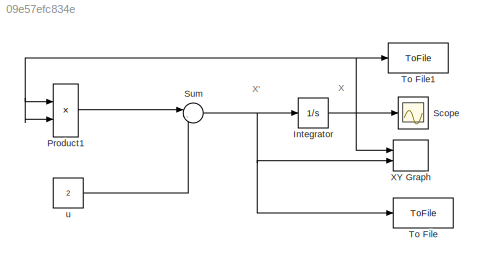
MODEL slx_09e57efc834e
KIND model
CONFIG AbsTol = auto
CONFIG EnableMultiTasking = on
CONFIG FixedStep = auto
CONFIG MaxStep = auto
CONFIG MinStep = auto
CONFIG RelTol = 1e-3
CONFIG SampleTimeConstraint = Unconstrained
CONFIG SolverName = ode45
CONFIG StartTime = 0.0
CONFIG StopTime = 10
BLOCK [Integrator] Integrator
  InitialCondition = -1
  Ports = [1, 1]
BLOCK [Product] Product1
  Ports = [2, 1]
BLOCK [Scope] Scope
  Floating = off
  NumInputPorts = 1
  Ports = [1]
  ScopeSpecificationString = Simulink.scopes.TimeScopeBlockCfg('CurrentConfiguration', extmgr.ConfigurationSet(extmgr.Configuration('Core','General UI',true),extmgr.Configuration('Core','Source UI',true),extmgr.Configuration('Sources','WiredSimulink',true),extmgr.Configuration('Visuals','Time Domain',true),extmgr.Configuration('Tools','Plot Navigation',true),extmgr.Configuration('Tools','Measurements',true)),'Version','2021b'...<+1ch>
BLOCK [Sum] Sum
  Inputs = |-+
  Ports = [2, 1]
BLOCK [ToFile] To File
  Filename = Xdot.mat
  MatrixName = Xdot
  Ports = [1]
  SampleTime = 0.001
BLOCK [ToFile] To File1
  Filename = X.mat
  MatrixName = X
  Ports = [1]
  SampleTime = 0.001
BLOCK [Record] XY Graph
  CompatibilityTag = XY
  FileSettingsInternal = {"entries":[{"content":{"excelSettings":{"content":{},"type":"Streamout.ExcelSettings"}},"type":"Streamout.FileSettingStorage","uuid":"6c3b332e-3c62-4d45-88eb-e11fe2c47eab"}],"packageUris":["http://schema.mathworks.com/mf0/streamout_blocks/R2020a"],"version":"1.0"}
  Layout = [1 1]
  Ports = [2]
  SignalsInternal = {"entries":[{"content":{"signals":[{"content":{"blockPath":["fig2_36_simulink/XY Graph"],"channel":[],"dimensions":[1],"domain":"fig2_36_simulink/XY Graph","lineColor":"#64d413","plots":[],"port":1,"sid":[""],"signalID":116456,"signalName":"Integrator"},"type":"RecordBlkView.Signal","uuid":"e47b75ec-31e0-4925-bacc-6e560f684e42"},{"content":{"blockPath":["fig2_36_simulink/XY Graph"],"channel":[],"d...<+396ch>
  VisualizationBindings = {"xyplotplugin":{"info":[{"series":[],"subplotID":1}]}}
BLOCK [Constant] u
  Value = 2
ANNOTATION (root): X
ANNOTATION (root): X'
NET Integrator:1 -> Product1:1, Product1:2, Scope:1, To File1:1, XY Graph:1
LINE Product1:1 -> Sum:1
NET Sum:1 -> Integrator:1, To File:1, XY Graph:2
LINE u:1 -> Sum:2
note: NET lines group one-source signal fan-out (src -> all destinations, sorted); 1:1 wires keep LINE
